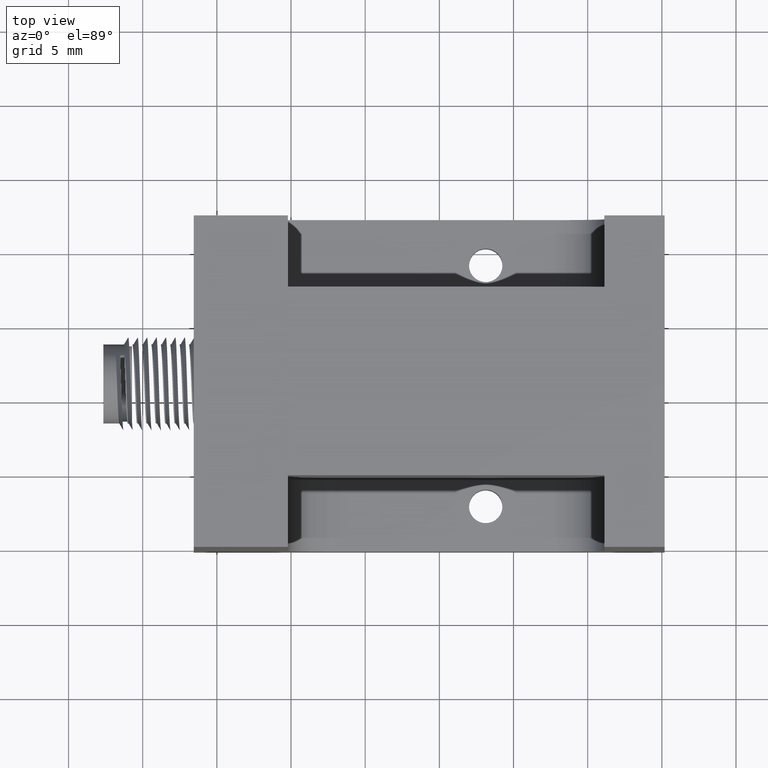
[diagram: clean part render]
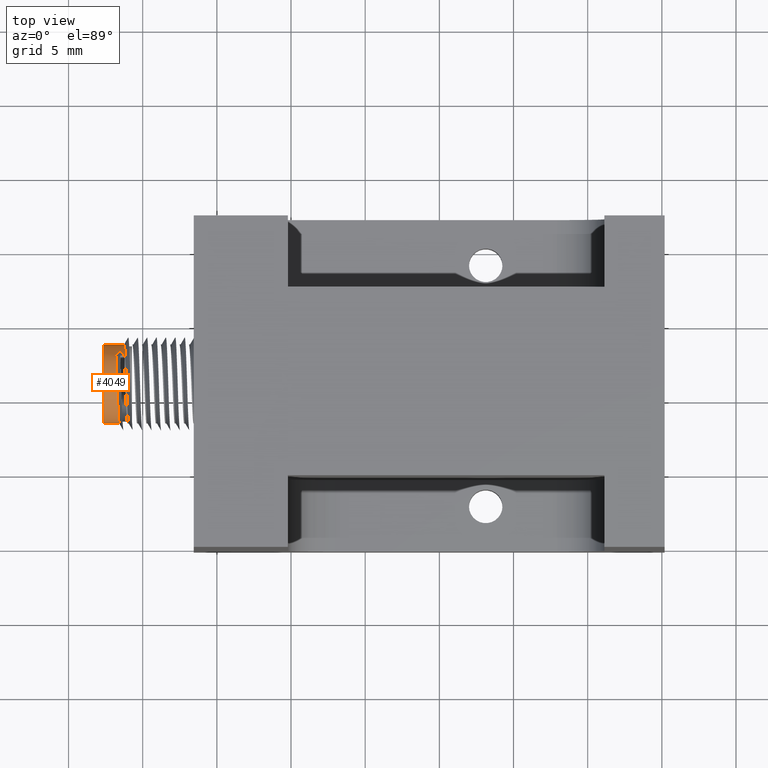
[diagram: same view with one face highlighted and labeled with its STEP entity id]
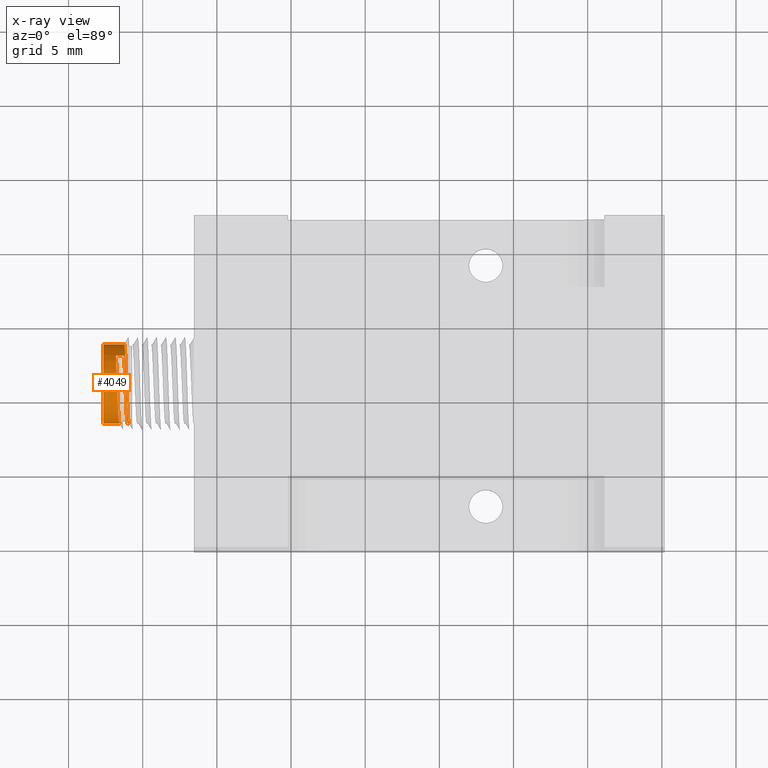
[diagram: x-ray of the same camera — body ghosted, the highlighted face saturated]
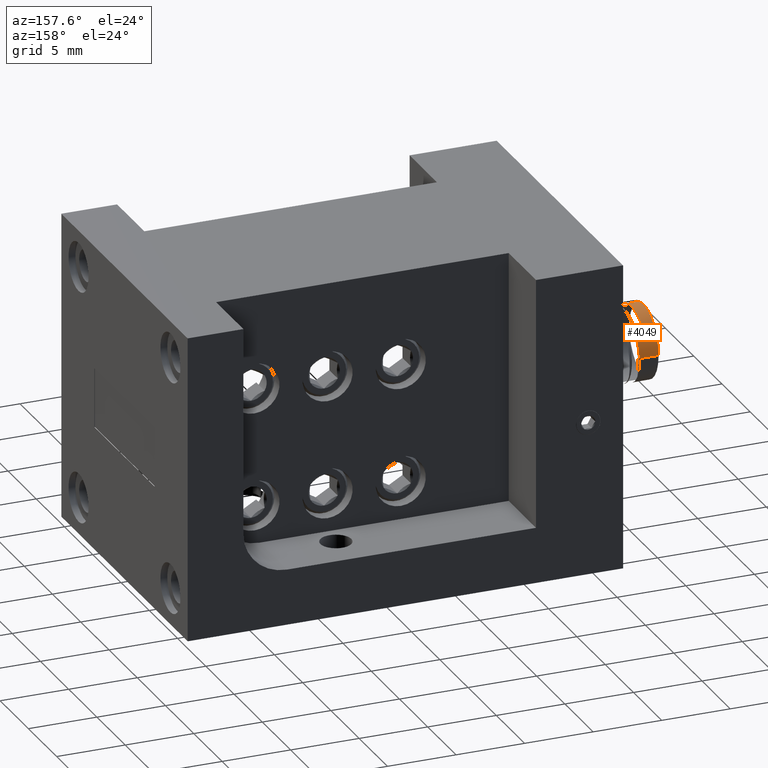
[diagram: same view with one face highlighted and labeled with its STEP entity id]
A machine part, top view. The second image highlights one B-rep face of the part: STEP entity #4049.
The next image is the same camera in x-ray: the body ghosted, the highlighted face saturated — about 0% of this face is hidden behind the body in this view.
A second angle (auxiliary view) of the same face is appended — the face is thin or edge-on in the first view.
In plain terms, the highlighted cylindrical surface (partial cylindrical patch) has radius 2.667 mm, axis along (-1, -0, -0).
Its self-contained STEP definition (entity closure, byte-faithful):
#18 =( BOUNDED_CURVE ( )  B_SPLINE_CURVE ( 2, ( #6724, #2644, #956, #4937, #3161, #2010, #6749 ),
 .UNSPECIFIED., .F., .F. ) 
 B_SPLINE_CURVE_WITH_KNOTS ( ( 3, 2, 2, 3 ),
 ( 0.0000000000000000000, 0.01190476190476186200, 0.02380952380952383600, 0.02683733425339441100 ),
 .UNSPECIFIED. ) 
 CURVE ( )  GEOMETRIC_REPRESENTATION_ITEM ( )  RATIONAL_B_SPLINE_CURVE ( ( 1.000000000000000000, 0.8660254037844387100, 1.000000000000000000, 0.8660254037844387100, 1.000000000000000000, 0.9659254267426750100, 0.9491836400802156100 ) ) 
 REPRESENTATION_ITEM ( '' )  );
#36 = EDGE_CURVE ( 'NONE', #6782, #3743, #18, .T. ) ;
#67 = CARTESIAN_POINT ( 'NONE',  ( -1.223269098590041600, -0.3786195485347985100, 0.2496475352123508600 ) ) ;
#319 = LINE ( 'NONE', #2899, #4038 ) ;
#421 = DIRECTION ( 'NONE',  ( 1.000000000000000000, 2.537025070179132000E-016, 3.925713232384854800E-016 ) ) ;
#425 = CARTESIAN_POINT ( 'NONE',  ( -1.243097498632726800, -0.4564438674591300100, 0.1482252380678190900 ) ) ;
#470 = EDGE_CURVE ( 'NONE', #7022, #5714, #5279, .T. ) ;
#614 = EDGE_CURVE ( 'NONE', #7573, #6789, #1275, .T. ) ;
#700 = CARTESIAN_POINT ( 'NONE',  ( -1.219102431923375400, -0.4528659938343027000, 0.1754015564634124900 ) ) ;
#812 = VECTOR ( 'NONE', #7100, 39.37007874015748100 ) ;
#877 = EDGE_CURVE ( 'NONE', #7382, #5714, #6678, .T. ) ;
#938 = CARTESIAN_POINT ( 'NONE',  ( -0.8606602320673342200, -0.2464438674591303600, 0.1482252380678193100 ) ) ;
#956 = CARTESIAN_POINT ( 'NONE',  ( -1.226272895642410500, -0.3786195485347987900, 0.2496475352123505900 ) ) ;
#973 = CARTESIAN_POINT ( 'NONE',  ( -1.250352431923375400, -0.3200633579765736500, 0.2653374219967996600 ) ) ;
#1110 = ORIENTED_EDGE ( 'NONE', *, *, #1707, .T. ) ;
#1203 = CARTESIAN_POINT ( 'NONE',  ( -1.218097498632726900, -0.4564438674591307900, 0.1482252380678191500 ) ) ;
#1275 =( BOUNDED_CURVE ( )  B_SPLINE_CURVE ( 2, ( #4790, #2350, #700, #5383, #67, #4094, #4739, #2979, #3575 ),
 .UNSPECIFIED., .F., .F. ) 
 B_SPLINE_CURVE_WITH_KNOTS ( ( 3, 2, 2, 2, 3 ),
 ( 0.9017340943180342000, 0.9047619047619047700, 0.9166666666666666300, 0.9285714285714286000, 0.9374483800323200100 ),
 .UNSPECIFIED. ) 
 CURVE ( )  GEOMETRIC_REPRESENTATION_ITEM ( )  RATIONAL_B_SPLINE_CURVE ( ( 0.9491836400802157200, 0.9659254267426751200, 1.000000000000000000, 0.8660254037844387100, 1.000000000000000000, 0.8660254037844387100, 1.000000000000000000, 0.9000999770417623700, 0.9491836400802169400 ) ) 
 REPRESENTATION_ITEM ( '' )  );
#1524 = ORIENTED_EDGE ( 'NONE', *, *, #4111, .T. ) ;
#1527 = DIRECTION ( 'NONE',  ( -1.000000000000000000, -2.537025070179132000E-016, -3.925713232384854800E-016 ) ) ;
#1561 = EDGE_CURVE ( 'NONE', #7573, #3743, #2418, .T. ) ;
#1707 = EDGE_CURVE ( 'NONE', #6789, #7022, #2618, .T. ) ;
#1713 = VERTEX_POINT ( 'NONE', #4572 ) ;
#1848 = CARTESIAN_POINT ( 'NONE',  ( -1.285660232067334700, -0.2464438674591301600, 0.1482252380678192300 ) ) ;
#2010 = CARTESIAN_POINT ( 'NONE',  ( -1.221631163178026300, -0.4564438674591305700, 0.1620489181240502600 ) ) ;
#2049 = CARTESIAN_POINT ( 'NONE',  ( -0.8606602320673342200, -0.3514438674591303100, 0.1482252380678193700 ) ) ;
#2143 = CARTESIAN_POINT ( 'NONE',  ( -1.248269098590042200, -0.3786195485347984000, 0.2496475352123506700 ) ) ;
#2350 = CARTESIAN_POINT ( 'NONE',  ( -1.218627366125657700, -0.4564438674591308500, 0.1620489181240503100 ) ) ;
#2387 = CARTESIAN_POINT ( 'NONE',  ( -1.221101295685096000, -0.4564438674591305700, 0.1482252380678191200 ) ) ;
#2418 = LINE ( 'NONE', #5910, #812 ) ;
#2536 = ORIENTED_EDGE ( 'NONE', *, *, #614, .T. ) ;
#2618 = LINE ( 'NONE', #938, #5545 ) ;
#2644 = CARTESIAN_POINT ( 'NONE',  ( -1.228356228975743900, -0.3200633579765738700, 0.2653374219967993800 ) ) ;
#2899 = CARTESIAN_POINT ( 'NONE',  ( -0.8606602320673345500, -0.2771974221596263400, 0.2224712168167578300 ) ) ;
#2979 = CARTESIAN_POINT ( 'NONE',  ( -1.228930423063775400, -0.2464438674591300200, 0.1917174688655479700 ) ) ;
#3161 = CARTESIAN_POINT ( 'NONE',  ( -1.222106228975744300, -0.4528659938343025900, 0.1754015564634123500 ) ) ;
#3247 = DIRECTION ( 'NONE',  ( -1.000000000000000000, -2.537025070179132000E-016, -3.925713232384854800E-016 ) ) ;
#3306 = DIRECTION ( 'NONE',  ( -1.000000000000000000, -2.537025070179132000E-016, -3.925713232384854800E-016 ) ) ;
#3415 = ORIENTED_EDGE ( 'NONE', *, *, #36, .T. ) ;
#3419 = CARTESIAN_POINT ( 'NONE',  ( -1.230597498632727300, -0.2464438674591304700, 0.1482252380678187300 ) ) ;
#3457 = AXIS2_PLACEMENT_3D ( 'NONE', #3898, #421, #4502 ) ;
#3506 = EDGE_LOOP ( 'NONE', ( #5297, #2536, #1110, #3536, #6867, #1524, #5431, #3415 ) ) ;
#3516 = CYLINDRICAL_SURFACE ( 'NONE', #4339, 0.1049999999999999700 ) ;
#3536 = ORIENTED_EDGE ( 'NONE', *, *, #470, .T. ) ;
#3575 = CARTESIAN_POINT ( 'NONE',  ( -1.230597498632727300, -0.2464438674591304700, 0.1482252380678187300 ) ) ;
#3738 =( BOUNDED_CURVE ( )  B_SPLINE_CURVE ( 2, ( #425, #5651, #3854, #6254, #2143, #973, #5707 ),
 .UNSPECIFIED., .F., .F. ) 
 B_SPLINE_CURVE_WITH_KNOTS ( ( 3, 2, 2, 3 ),
 ( 0.9731626657466055900, 0.9761904761904761600, 0.9880952380952381400, 1.000000000000000000 ),
 .UNSPECIFIED. ) 
 CURVE ( )  GEOMETRIC_REPRESENTATION_ITEM ( )  RATIONAL_B_SPLINE_CURVE ( ( 0.9491836400802157200, 0.9659254267426751200, 1.000000000000000000, 0.8660254037844387100, 1.000000000000000000, 0.8660254037844387100, 1.000000000000000000 ) ) 
 REPRESENTATION_ITEM ( '' )  );
#3743 = VERTEX_POINT ( 'NONE', #2387 ) ;
#3778 = DIRECTION ( 'NONE',  ( 0.0000000000000000000, 1.000000000000000000, -6.504399984914914400E-016 ) ) ;
#3842 = CARTESIAN_POINT ( 'NONE',  ( -0.8606602320673342200, -0.4564438674591302900, 0.1482252380678194300 ) ) ;
#3854 = CARTESIAN_POINT ( 'NONE',  ( -1.244102431923374900, -0.4528659938343020400, 0.1754015564634123500 ) ) ;
#3898 = CARTESIAN_POINT ( 'NONE',  ( -1.285660232067334700, -0.3514438674591301400, 0.1482252380678192300 ) ) ;
#4038 = VECTOR ( 'NONE', #5848, 39.37007874015748100 ) ;
#4049 = ADVANCED_FACE ( 'NONE', ( #6084 ), #3516, .T. ) ;
#4094 = CARTESIAN_POINT ( 'NONE',  ( -1.225352431923375100, -0.3200633579765738700, 0.2653374219967990500 ) ) ;
#4111 = EDGE_CURVE ( 'NONE', #7382, #1713, #3738, .T. ) ;
#4339 = AXIS2_PLACEMENT_3D ( 'NONE', #2049, #1527, #3778 ) ;
#4502 = DIRECTION ( 'NONE',  ( 0.0000000000000000000, -1.000000000000000000, 6.504399984914914400E-016 ) ) ;
#4572 = CARTESIAN_POINT ( 'NONE',  ( -1.252435765256708000, -0.2771974221596262800, 0.2224712168167578000 ) ) ;
#4739 = CARTESIAN_POINT ( 'NONE',  ( -1.227435765256707600, -0.2771974221596265100, 0.2224712168167581600 ) ) ;
#4755 = EDGE_CURVE ( 'NONE', #1713, #6782, #319, .T. ) ;
#4790 = CARTESIAN_POINT ( 'NONE',  ( -1.218097498632726900, -0.4564438674591307900, 0.1482252380678191500 ) ) ;
#4883 = CARTESIAN_POINT ( 'NONE',  ( -1.285660232067334700, -0.4564438674591301300, 0.1482252380678192900 ) ) ;
#4937 = CARTESIAN_POINT ( 'NONE',  ( -1.224189562309077100, -0.4371757390930247600, 0.2339576484279022900 ) ) ;
#5101 = VECTOR ( 'NONE', #3247, 39.37007874015748100 ) ;
#5279 = CIRCLE ( 'NONE', #3457, 0.1049999999999999700 ) ;
#5297 = ORIENTED_EDGE ( 'NONE', *, *, #1561, .F. ) ;
#5383 = CARTESIAN_POINT ( 'NONE',  ( -1.221185765256707500, -0.4371757390930241500, 0.2339576484279022900 ) ) ;
#5431 = ORIENTED_EDGE ( 'NONE', *, *, #4755, .T. ) ;
#5545 = VECTOR ( 'NONE', #3306, 39.37007874015748100 ) ;
#5609 = CARTESIAN_POINT ( 'NONE',  ( -1.230439562309076700, -0.2771974221596268400, 0.2224712168167574700 ) ) ;
#5651 = CARTESIAN_POINT ( 'NONE',  ( -1.243627366125657200, -0.4564438674591301300, 0.1620489181240502600 ) ) ;
#5707 = CARTESIAN_POINT ( 'NONE',  ( -1.252435765256708000, -0.2771974221596262800, 0.2224712168167578000 ) ) ;
#5714 = VERTEX_POINT ( 'NONE', #4883 ) ;
#5848 = DIRECTION ( 'NONE',  ( 1.000000000000000000, 2.537025070179132000E-016, 3.925713232384854800E-016 ) ) ;
#5910 = CARTESIAN_POINT ( 'NONE',  ( -0.8606602320673342200, -0.4564438674591302900, 0.1482252380678194300 ) ) ;
#6084 = FACE_OUTER_BOUND ( 'NONE', #3506, .T. ) ;
#6254 = CARTESIAN_POINT ( 'NONE',  ( -1.246185765256708300, -0.4371757390930243700, 0.2339576484279027600 ) ) ;
#6649 = CARTESIAN_POINT ( 'NONE',  ( -1.243097498632726800, -0.4564438674591300100, 0.1482252380678190900 ) ) ;
#6678 = LINE ( 'NONE', #3842, #5101 ) ;
#6724 = CARTESIAN_POINT ( 'NONE',  ( -1.230439562309076700, -0.2771974221596268400, 0.2224712168167574700 ) ) ;
#6749 = CARTESIAN_POINT ( 'NONE',  ( -1.221101295685096000, -0.4564438674591305700, 0.1482252380678191200 ) ) ;
#6782 = VERTEX_POINT ( 'NONE', #5609 ) ;
#6789 = VERTEX_POINT ( 'NONE', #3419 ) ;
#6867 = ORIENTED_EDGE ( 'NONE', *, *, #877, .F. ) ;
#7022 = VERTEX_POINT ( 'NONE', #1848 ) ;
#7100 = DIRECTION ( 'NONE',  ( -1.000000000000000000, -2.537025070179132000E-016, -3.925713232384854800E-016 ) ) ;
#7382 = VERTEX_POINT ( 'NONE', #6649 ) ;
#7573 = VERTEX_POINT ( 'NONE', #1203 ) ;